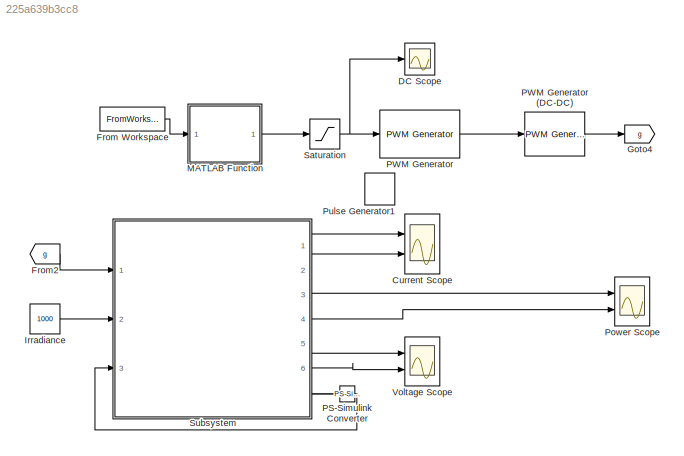
MODEL slx_225a639b3cc8
KIND model
CONFIG AbsTol = auto
CONFIG EnableMultiTasking = off
CONFIG FixedStep = auto
CONFIG MaxStep = auto
CONFIG MinStep = auto
CONFIG RelTol = 1e-3
CONFIG SampleTimeConstraint = Unconstrained
CONFIG Solver = VariableStepAuto
CONFIG SolverName = VariableStepAuto
CONFIG StartTime = 0.0
CONFIG StopTime = 0.01
BLOCK [Scope] Current Scope
  Floating = off
  NumInputPorts = 2
  Ports = [2]
  ScopeSpecificationString = Simulink.scopes.TimeScopeBlockCfg('CurrentConfiguration', extmgr.ConfigurationSet(extmgr.Configuration('Core','General UI',true),extmgr.Configuration('Core','Source UI',true),extmgr.Configuration('Sources','WiredSimulink',true,'DataLoggingVariableName','ScopeData1'),extmgr.Configuration('Visuals','Time Domain',true,'SerializedDisplays',{struct('MinYLimReal','-0.9175','MaxYLimReal','8.2575','YLabel...<+1414ch>
BLOCK [Scope] DC Scope
  Floating = off
  NumInputPorts = 1
  Ports = [1]
  ScopeSpecificationString = Simulink.scopes.TimeScopeBlockCfg('CurrentConfiguration', extmgr.ConfigurationSet(extmgr.Configuration('Core','General UI',true),extmgr.Configuration('Core','Source UI',true),extmgr.Configuration('Sources','WiredSimulink',true,'DataLoggingVariableName','ScopeData1'),extmgr.Configuration('Visuals','Time Domain',true,'SerializedDisplays',{struct('MinYLimReal','0','MaxYLimReal','0.7','YLabelReal','',...<+1398ch>
BLOCK [FromWorkspace] From Workspace
  SampleTime = 0
  VariableName = V
  ZeroCross = on
BLOCK [From] From2
  GotoTag = g
BLOCK [Goto] Goto4
  GotoTag = g
BLOCK [Constant] Irradiance
  Value = 1000
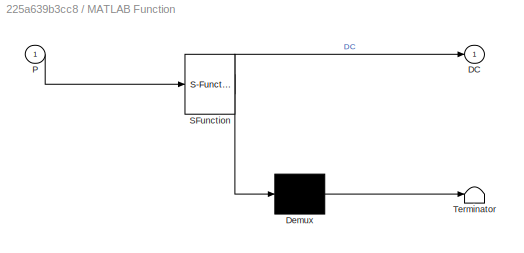
BLOCK [SubSystem] MATLAB Function
  ErrorFcn = Stateflow.Translate.translate
  PermitHierarchicalResolution = ExplicitOnly
  Ports = [1, 1]
  RequestExecContextInheritance = off
  SFBlockType = MATLAB Function
  TreatAsAtomicUnit = on
BLOCK [Demux] MATLAB Function/ Demux 
  Outputs = 1
  Ports = [1, 1]
BLOCK [S-Function] MATLAB Function/ SFunction 
  EnableBusSupport = on
  FunctionName = sf_sfun
  PortCounts = [1 2]
  Ports = [1, 2]
  SFcnIsStateOwnerBlock = off
  SFunctionDeploymentMode = off
  Tag = Stateflow S-Function mppt 2
BLOCK [Terminator] MATLAB Function/ Terminator 
BLOCK [Outport] MATLAB Function/DC
  IconDisplay = Port number
BLOCK [Inport] MATLAB Function/P
  IconDisplay = Port number
BLOCK [Reference] PS-Simulink Converter  REF=nesl_utility/PS-Simulink
Converter
  Ports = [0, 1, 0, 0, 0, 1]
  SourceBlock = nesl_utility/PS-Simulink\nConverter
  SourceProductBaseCode = SS
  SourceProductName = Simscape
  SourceType = PS-Simulink\nConverter
BLOCK [Reference] PWM Generator  REF=pePwmGenerator/PWM Generator
  Ports = [1, 1]
  SourceBlock = pePwmGenerator/PWM Generator
  SourceType = PWM Generator
BLOCK [Reference] PWM Generator (DC-DC)  REF=powerlib_meascontrol/Pulse & Signal
Generators/PWM Generator
(DC-DC)
  Ports = [1, 1]
  SourceBlock = powerlib_meascontrol/Pulse & Signal\nGenerators/PWM Generator\n(DC-DC)
  SourceProductBaseCode = PS
  SourceProductName = Simscape Electrical
  SourceType = PWM Generator (DC-DC)
BLOCK [Scope] Power Scope
  Floating = off
  NumInputPorts = 2
  Ports = [2]
  ScopeSpecificationString = Simulink.scopes.TimeScopeBlockCfg('CurrentConfiguration', extmgr.ConfigurationSet(extmgr.Configuration('Core','General UI',true),extmgr.Configuration('Core','Source UI',true),extmgr.Configuration('Sources','WiredSimulink',true,'DataLoggingVariableName','ScopeData2'),extmgr.Configuration('Visuals','Time Domain',true,'SerializedDisplays',{struct('MinYLimReal','0','MaxYLimReal','400','YLabelReal','',...<+1430ch>
BLOCK [DiscretePulseGenerator] Pulse Generator1
  Period = 0.000001
  Ports = [0, 1]
  PulseType = Time based
  PulseWidth = 46
BLOCK [Saturate] Saturation
  InputPortMap = u0
  LowerLimit = 0
  Ports = [1, 1]
  UpperLimit = 1
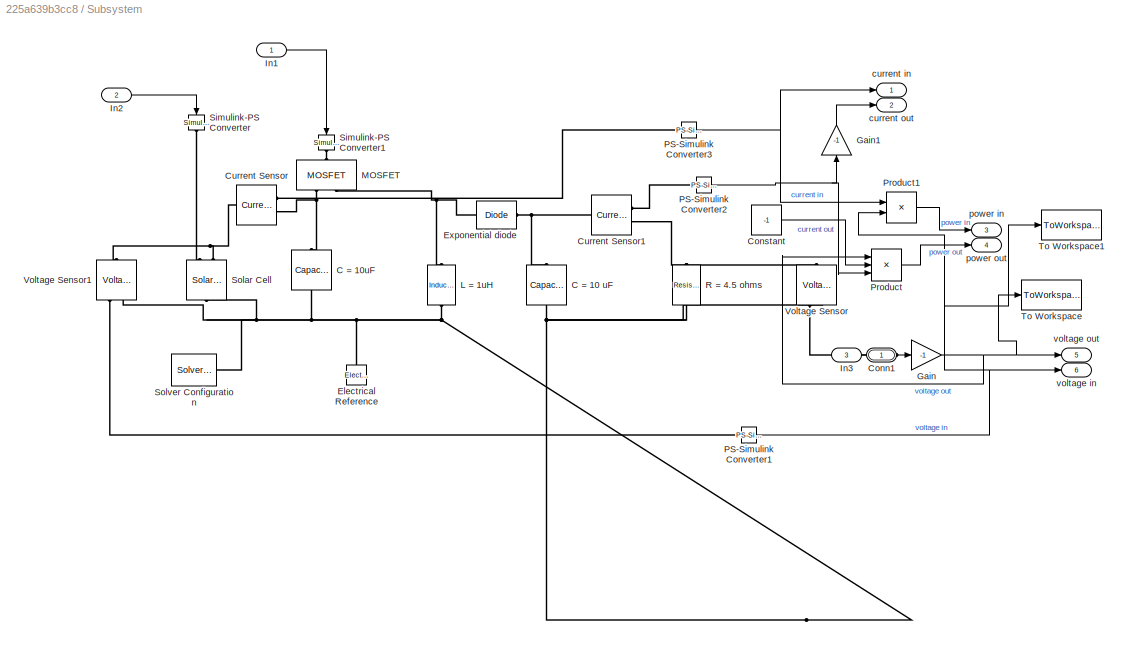
BLOCK [SubSystem] Subsystem
  Ports = [3, 6, 0, 0, 0, 0, 1]
  RequestExecContextInheritance = off
BLOCK [Reference] Subsystem/C = 10 uF  REF=elec_lib/Passive Devices/Capacitor
  Ports = [0, 0, 0, 0, 0, 1, 1]
  SourceBlock = elec_lib/Passive Devices/Capacitor
  SourceProductBaseCode = SN
  SourceProductName = Simscape Electronics
  SourceType = Capacitor
BLOCK [Reference] Subsystem/C = 10uF  REF=elec_lib/Passive Devices/Capacitor
  Ports = [0, 0, 0, 0, 0, 1, 1]
  SourceBlock = elec_lib/Passive Devices/Capacitor
  SourceProductBaseCode = SN
  SourceProductName = Simscape Electronics
  SourceType = Capacitor
BLOCK [PMIOPort] Subsystem/Conn1
  Side = Right
BLOCK [Constant] Subsystem/Constant
  Value = -1
BLOCK [Reference] Subsystem/Current Sensor  REF=fl_lib/Electrical/Electrical Sensors/Current Sensor
  Ports = [0, 0, 0, 0, 0, 1, 2]
  SourceBlock = fl_lib/Electrical/Electrical Sensors/Current Sensor
  SourceProductBaseCode = SS
  SourceProductName = Simscape
  SourceType = Current Sensor
BLOCK [Reference] Subsystem/Current Sensor1  REF=fl_lib/Electrical/Electrical Sensors/Current Sensor
  Ports = [0, 0, 0, 0, 0, 1, 2]
  SourceBlock = fl_lib/Electrical/Electrical Sensors/Current Sensor
  SourceProductBaseCode = SS
  SourceProductName = Simscape
  SourceType = Current Sensor
BLOCK [Reference] Subsystem/Electrical Reference  REF=fl_lib/Electrical/Electrical Elements/Electrical Reference
  Ports = [0, 0, 0, 0, 0, 1]
  SourceBlock = fl_lib/Electrical/Electrical Elements/Electrical Reference
  SourceProductBaseCode = SS
  SourceProductName = Simscape
  SourceType = Electrical Reference
BLOCK [Reference] Subsystem/Exponential diode  REF=elec_lib/Semiconductor
Devices/Diode
  Ports = [0, 0, 0, 0, 0, 1, 1]
  SourceBlock = elec_lib/Semiconductor\nDevices/Diode
  SourceProductBaseCode = SN
  SourceProductName = Simscape Electronics
  SourceType = Diode
BLOCK [Gain] Subsystem/Gain
  Gain = -1
  OutDataTypeStr = Inherit: Inherit via internal rule
  ParamDataTypeStr = Inherit: Inherit via internal rule
  SaturateOnIntegerOverflow = off
BLOCK [Gain] Subsystem/Gain1
  Gain = -1
  OutDataTypeStr = Inherit: Inherit via internal rule
  ParamDataTypeStr = Inherit: Inherit via internal rule
  SaturateOnIntegerOverflow = off
BLOCK [Inport] Subsystem/In1
  IconDisplay = Port number
BLOCK [Inport] Subsystem/In2
  IconDisplay = Port number
  Port = 2
BLOCK [Inport] Subsystem/In3
  IconDisplay = Port number
  Port = 3
BLOCK [Reference] Subsystem/L = 1uH  REF=elec_lib/Passive Devices/Inductor
  Ports = [0, 0, 0, 0, 0, 1, 1]
  SourceBlock = elec_lib/Passive Devices/Inductor
  SourceProductBaseCode = SN
  SourceProductName = Simscape Electronics
  SourceType = Inductor
BLOCK [Reference] Subsystem/MOSFET  REF=pe_lib/Semiconductors/Fundamental
Components/MOSFET
  Ports = [0, 0, 0, 0, 0, 1, 2]
  SourceBlock = pe_lib/Semiconductors/Fundamental\nComponents/MOSFET
  SourceProductBaseCode = PS
  SourceProductName = Simscape Power Systems
  SourceType = MOSFET
BLOCK [Reference] Subsystem/PS-Simulink Converter1  REF=nesl_utility/PS-Simulink
Converter
  Ports = [0, 1, 0, 0, 0, 1]
  SourceBlock = nesl_utility/PS-Simulink\nConverter
  SourceProductBaseCode = SS
  SourceProductName = Simscape
  SourceType = PS-Simulink\nConverter
BLOCK [Reference] Subsystem/PS-Simulink Converter2  REF=nesl_utility/PS-Simulink
Converter
  Ports = [0, 1, 0, 0, 0, 1]
  SourceBlock = nesl_utility/PS-Simulink\nConverter
  SourceProductBaseCode = SS
  SourceProductName = Simscape
  SourceType = PS-Simulink\nConverter
BLOCK [Reference] Subsystem/PS-Simulink Converter3  REF=nesl_utility/PS-Simulink
Converter
  Ports = [0, 1, 0, 0, 0, 1]
  SourceBlock = nesl_utility/PS-Simulink\nConverter
  SourceProductBaseCode = SS
  SourceProductName = Simscape
  SourceType = PS-Simulink\nConverter
BLOCK [Product] Subsystem/Product
  InputSameDT = off
  Inputs = 3
  OutDataTypeStr = Inherit: Inherit via internal rule
  Ports = [3, 1]
  RndMeth = Floor
  SaturateOnIntegerOverflow = off
BLOCK [Product] Subsystem/Product1
  InputSameDT = off
  OutDataTypeStr = Inherit: Inherit via internal rule
  Ports = [2, 1]
  RndMeth = Floor
  SaturateOnIntegerOverflow = off
BLOCK [Reference] Subsystem/R = 4.5 ohms  REF=elec_lib/Passive Devices/Resistor
  Ports = [0, 0, 0, 0, 0, 1, 1]
  SourceBlock = elec_lib/Passive Devices/Resistor
  SourceProductBaseCode = SN
  SourceProductName = Simscape Electronics
  SourceType = Resistor
BLOCK [Reference] Subsystem/Simulink-PS Converter  REF=nesl_utility/Simulink-PS
Converter
  Ports = [1, 0, 0, 0, 0, 0, 1]
  SourceBlock = nesl_utility/Simulink-PS\nConverter
  SourceProductBaseCode = SS
  SourceProductName = Simscape
  SourceType = Simulink-PS\nConverter
BLOCK [Reference] Subsystem/Simulink-PS Converter1  REF=nesl_utility/Simulink-PS
Converter
  Ports = [1, 0, 0, 0, 0, 0, 1]
  SourceBlock = nesl_utility/Simulink-PS\nConverter
  SourceProductBaseCode = SS
  SourceProductName = Simscape
  SourceType = Simulink-PS\nConverter
BLOCK [Reference] Subsystem/Solar Cell  REF=elec_lib/Sources/Solar Cell
  Ports = [0, 0, 0, 0, 0, 2, 1]
  SourceBlock = elec_lib/Sources/Solar Cell
  SourceProductBaseCode = SN
  SourceProductName = Simscape Electronics
  SourceType = Solar Cell
BLOCK [Reference] Subsystem/Solver Configuration  REF=nesl_utility/Solver
Configuration
  Ports = [0, 0, 0, 0, 0, 0, 1]
  SourceBlock = nesl_utility/Solver\nConfiguration
  SourceProductBaseCode = SS
  SourceProductName = Simscape
  SourceType = Solver\nConfiguration
BLOCK [ToWorkspace] Subsystem/To Workspace
  FixptAsFi = on
  MaxDataPoints = inf
  Ports = [1]
  SampleTime = -1
  Save2DSignal = 3-D array (concatenate along third dimension)
  SaveFormat = Timeseries
  VariableName = V
BLOCK [ToWorkspace] Subsystem/To Workspace1
  FixptAsFi = on
  MaxDataPoints = inf
  Ports = [1]
  SampleTime = -1
  Save2DSignal = 3-D array (concatenate along third dimension)
  SaveFormat = Timeseries
  VariableName = P
BLOCK [Reference] Subsystem/Voltage Sensor  REF=fl_lib/Electrical/Electrical Sensors/Voltage Sensor
  Ports = [0, 0, 0, 0, 0, 1, 2]
  SourceBlock = fl_lib/Electrical/Electrical Sensors/Voltage Sensor
  SourceProductBaseCode = SS
  SourceProductName = Simscape
  SourceType = Voltage Sensor
BLOCK [Reference] Subsystem/Voltage Sensor1  REF=fl_lib/Electrical/Electrical Sensors/Voltage Sensor
  Ports = [0, 0, 0, 0, 0, 1, 2]
  SourceBlock = fl_lib/Electrical/Electrical Sensors/Voltage Sensor
  SourceProductBaseCode = SS
  SourceProductName = Simscape
  SourceType = Voltage Sensor
BLOCK [Outport] Subsystem/current in
  IconDisplay = Port number
BLOCK [Outport] Subsystem/current out
  IconDisplay = Port number
  Port = 2
BLOCK [Outport] Subsystem/power in
  IconDisplay = Port number
  Port = 3
BLOCK [Outport] Subsystem/power out
  IconDisplay = Port number
  Port = 4
BLOCK [Outport] Subsystem/voltage in
  IconDisplay = Port number
  Port = 6
BLOCK [Outport] Subsystem/voltage out
  IconDisplay = Port number
  Port = 5
BLOCK [Scope] Voltage Scope
  Floating = off
  NumInputPorts = 2
  Ports = [2]
  ScopeSpecificationString = Simulink.scopes.TimeScopeBlockCfg('CurrentConfiguration', extmgr.ConfigurationSet(extmgr.Configuration('Core','General UI',true),extmgr.Configuration('Core','Source UI',true),extmgr.Configuration('Sources','WiredSimulink',true),extmgr.Configuration('Visuals','Time Domain',true,'SerializedDisplays',{struct('MinYLimReal','-7.38425','MaxYLimReal','66.45826','YLabelReal','','MinYLimMag','0.00000','Max...<+1402ch>
LINE From Workspace:1 -> MATLAB Function:1
LINE From2:1 -> Subsystem:1
LINE Irradiance:1 -> Subsystem:2
LINE MATLAB Function:1 -> Saturation:1
LINE PS-Simulink Converter:1 -> Subsystem:3
LINE PWM Generator (DC-DC):1 -> Goto4:1
LINE PWM Generator:1 -> PWM Generator (DC-DC):1
NET Saturation:1 -> DC Scope:1, PWM Generator:1
LINE Subsystem/Constant:1 -> Subsystem/Product:2
LINE Subsystem/Gain1:1 -> Subsystem/current out:1
NET Subsystem/Gain:1 -> Subsystem/Product:1, Subsystem/To Workspace:1, Subsystem/voltage out:1
LINE Subsystem/In1:1 -> Subsystem/Simulink-PS Converter1:1
LINE Subsystem/In2:1 -> Subsystem/Simulink-PS Converter:1
LINE Subsystem/In3:1 -> Subsystem/Gain:1
NET Subsystem/PS-Simulink Converter1:1 -> Subsystem/Product1:2, Subsystem/To Workspace1:1, Subsystem/voltage in:1
NET Subsystem/PS-Simulink Converter2:1 -> Subsystem/Gain1:1, Subsystem/Product:3
NET Subsystem/PS-Simulink Converter3:1 -> Subsystem/Product1:1, Subsystem/current in:1
LINE Subsystem/Product1:1 -> Subsystem/power in:1
LINE Subsystem/Product:1 -> Subsystem/power out:1
LINE Subsystem:1 -> Current Scope:1
LINE Subsystem:2 -> Current Scope:2
LINE Subsystem:3 -> Power Scope:1
LINE Subsystem:4 -> Power Scope:2
LINE Subsystem:5 -> Voltage Scope:1
LINE Subsystem:6 -> Voltage Scope:2
PLINE PS-Simulink Converter:LConn1 -- Subsystem:RConn1
PNET net1: Subsystem/C = 10 uF:LConn1 -- Subsystem/C = 10uF:LConn1 -- Subsystem/Electrical Reference:LConn1 -- Subsystem/L = 1uH:RConn1 -- Subsystem/R = 4.5 ohms:RConn1 -- Subsystem/Solar Cell:RConn1 -- Subsystem/Solver Configuration:RConn1 -- Subsystem/Voltage Sensor1:RConn2 -- Subsystem/Voltage Sensor:RConn2
PNET net2: Subsystem/C = 10 uF:RConn1 -- Subsystem/Current Sensor1:LConn1 -- Subsystem/Exponential diode:LConn1
PNET net3: Subsystem/C = 10uF:RConn1 -- Subsystem/Current Sensor:RConn2 -- Subsystem/MOSFET:RConn1
PLINE Subsystem/Conn1:RConn1 -- Subsystem/Voltage Sensor:RConn1
PLINE Subsystem/Current Sensor1:RConn1 -- Subsystem/PS-Simulink Converter2:LConn1
PNET net4: Subsystem/Current Sensor1:RConn2 -- Subsystem/R = 4.5 ohms:LConn1 -- Subsystem/Voltage Sensor:LConn1
PNET net5: Subsystem/Current Sensor:LConn1 -- Subsystem/Solar Cell:LConn2 -- Subsystem/Voltage Sensor1:LConn1
PLINE Subsystem/Current Sensor:RConn1 -- Subsystem/PS-Simulink Converter3:LConn1
PNET net6: Subsystem/Exponential diode:RConn1 -- Subsystem/L = 1uH:LConn1 -- Subsystem/MOSFET:RConn2
PLINE Subsystem/MOSFET:LConn1 -- Subsystem/Simulink-PS Converter1:RConn1
PLINE Subsystem/PS-Simulink Converter1:LConn1 -- Subsystem/Voltage Sensor1:RConn1
PLINE Subsystem/Simulink-PS Converter:RConn1 -- Subsystem/Solar Cell:LConn1
note: NET lines group one-source signal fan-out (src -> all destinations, sorted); 1:1 wires keep LINE; PNET lines group multi-terminal physical nets as a canonical sorted terminal list (undirected conserving connections); 2-terminal nets keep the pairwise PLINE form
CHART MATLAB Function states=1 transitions=1
  STATE_LABEL 'eML_blk_kernel()'
  STATE_LABEL 'SCRIPT:\nfunction DC = fcn(P)\n\npersistent Pprev DCprev DCnew\nincDC = 0.01;\n% The amout by which it will be changed each time; equivalent to 1%\n\nif isempty(DCprev)\n    DCprev = 0.4;\n    Pprev = 0;\n    DCnew = 0.42;\nelse\n    DC = DCnew;\nend\n\nif P ~= Pprev \n    if P > Pprev\n        if DCnew > DCprev\n            DCprev = DCnew;\n            DCnew = DCnew + incDC;\n            DC = DCnew;\n        else\n   ...<+418ch>'
